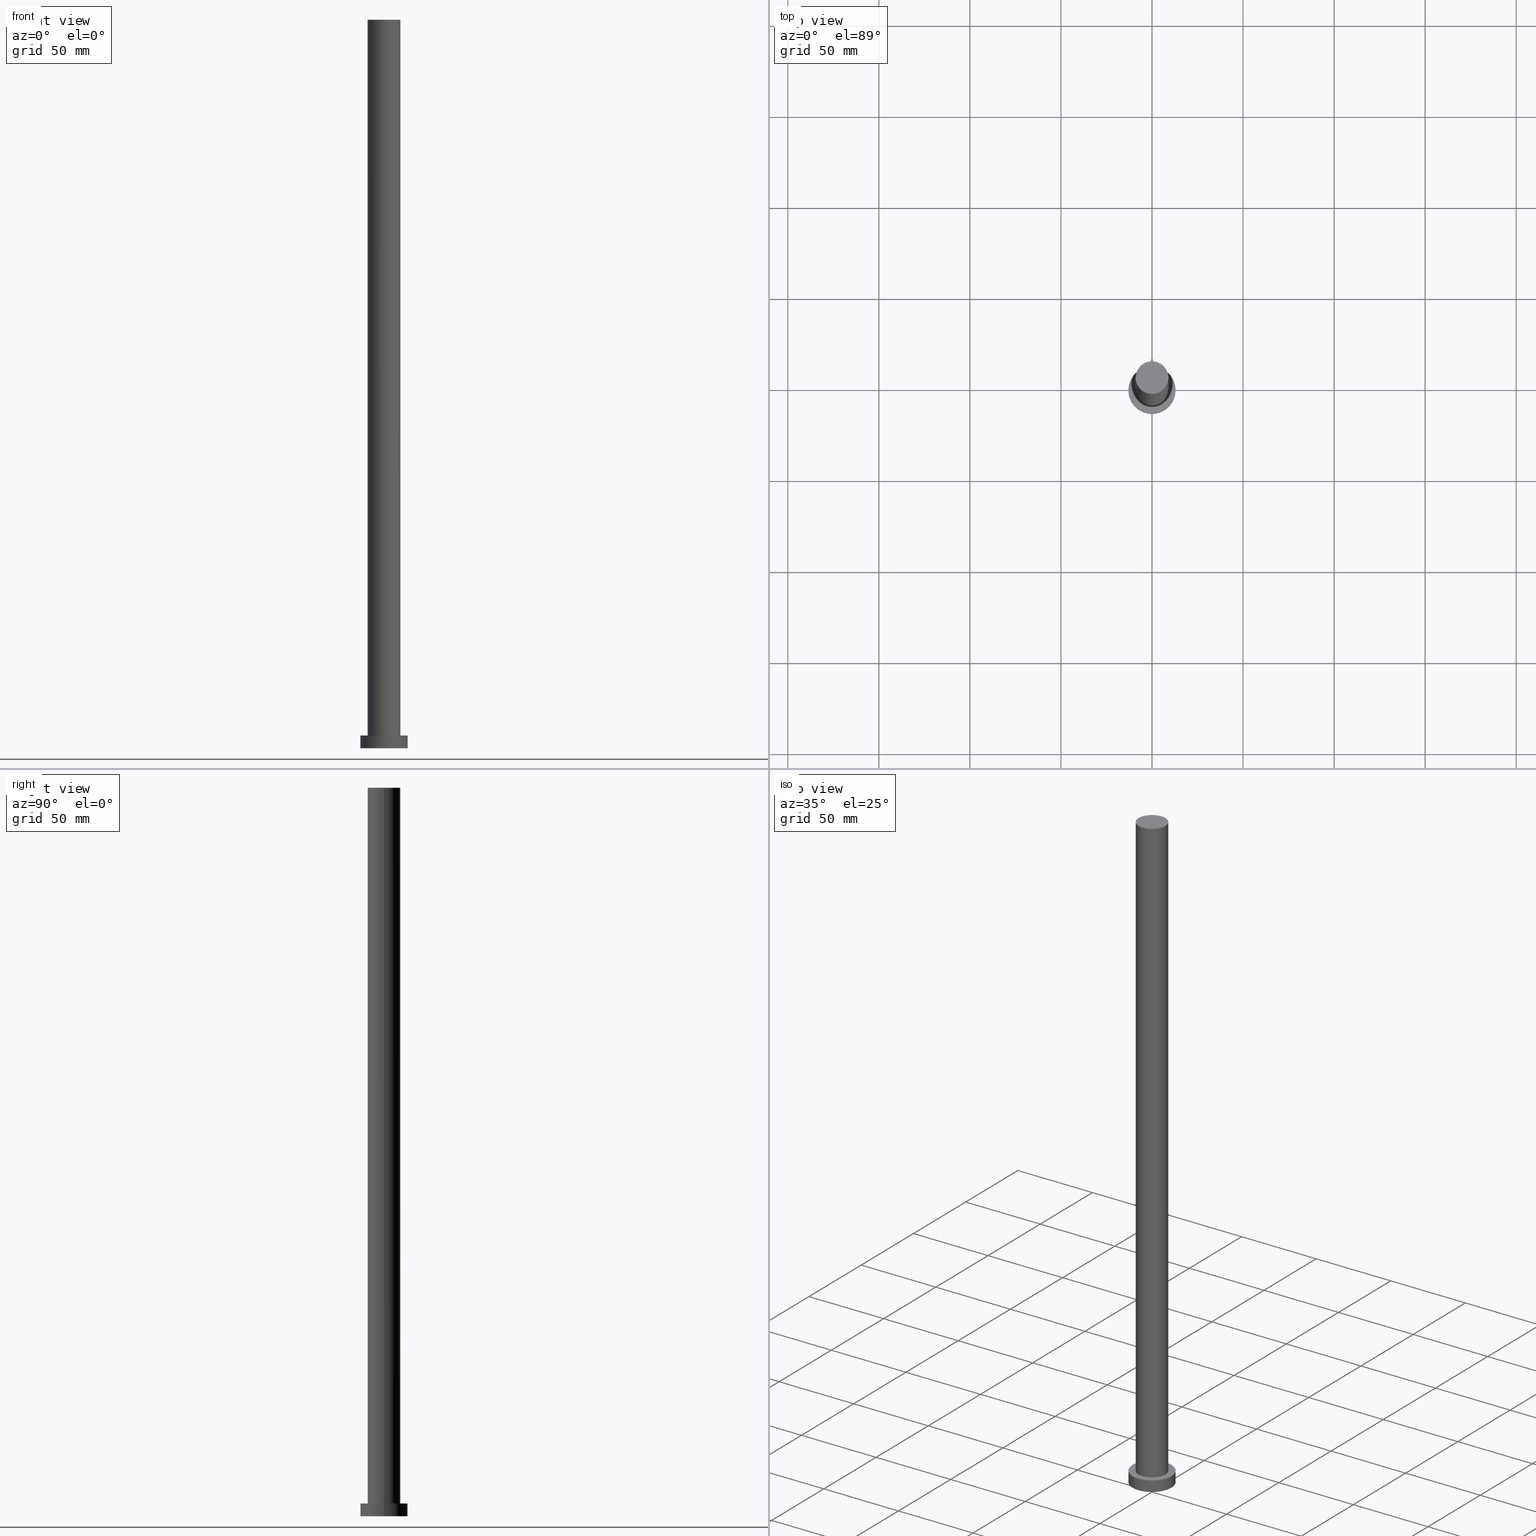
[diagram: canonical four-view strip — front | top / right | iso, engineering-drawing reading convention]
A machine part, canonical four-view strip (front | top / right | iso — engineering-drawing reading convention). The complete STEP part file that produces these views, byte-faithful:
ISO-10303-21;
HEADER;
FILE_DESCRIPTION (( 'STEP AP203' ),
    '1' );
FILE_NAME ('c1e1.STEP',
    '2023-02-13T08:43:02',
    ( '' ),
    ( '' ),
    'SwSTEP 2.0',
    'SolidWorks 2019',
    '' );
FILE_SCHEMA (( 'CONFIG_CONTROL_DESIGN' ));
ENDSEC;

DATA;
#1 = AXIS2_PLACEMENT_3D ( 'NONE', #35, #209, #247 ) ;
#2 = FACE_OUTER_BOUND ( 'NONE', #178, .T. ) ;
#3 = DIRECTION ( 'NONE',  ( 1.000000000000000000, 0.000000000000000000, 0.000000000000000000 ) ) ;
#4 = AXIS2_PLACEMENT_3D ( 'NONE', #131, #208, #135 ) ;
#5 = CARTESIAN_POINT ( 'NONE',  ( 0.000000000000000000, 0.000000000000000000, 0.000000000000000000 ) ) ;
#6 = AXIS2_PLACEMENT_3D ( 'NONE', #89, #144, #91 ) ;
#7 = CARTESIAN_POINT ( 'NONE',  ( 0.000000000000000000, 0.000000000000000000, 400.0000000000000000 ) ) ;
#8 = APPROVAL_ROLE ( '' ) ;
#9 = CYLINDRICAL_SURFACE ( 'NONE', #66, 9.000000000000000000 ) ;
#10 = DIRECTION ( 'NONE',  ( 1.000000000000000000, 0.000000000000000000, 0.000000000000000000 ) ) ;
#11 = VERTEX_POINT ( 'NONE', #80 ) ;
#12 = DATE_AND_TIME ( #51, #242 ) ;
#13 = DIRECTION ( 'NONE',  ( -0.000000000000000000, -0.000000000000000000, -1.000000000000000000 ) ) ;
#14 = CIRCLE ( 'NONE', #159, 9.000000000000000000 ) ;
#15 = APPROVAL_STATUS ( 'not_yet_approved' ) ;
#16 = ADVANCED_FACE ( 'NONE', ( #26, #2 ), #184, .T. ) ;
#17 = DATE_TIME_ROLE ( 'classification_date' ) ;
#18 = ORIENTED_EDGE ( 'NONE', *, *, #204, .F. ) ;
#19 = APPROVAL_PERSON_ORGANIZATION ( #185, #137, #8 ) ;
#20 =( LENGTH_UNIT ( ) NAMED_UNIT ( * ) SI_UNIT ( .MILLI., .METRE. ) );
#21 = LOCAL_TIME ( 9, 43, 2.000000000000000000, #69 ) ;
#22 = VERTEX_POINT ( 'NONE', #122 ) ;
#23 = VECTOR ( 'NONE', #65, 1000.000000000000000 ) ;
#24 = DIRECTION ( 'NONE',  ( -0.000000000000000000, -0.000000000000000000, -1.000000000000000000 ) ) ;
#25 = APPLICATION_CONTEXT ( 'configuration controlled 3d designs of mechanical parts and assemblies' ) ;
#26 = FACE_BOUND ( 'NONE', #53, .T. ) ;
#27 = EDGE_CURVE ( 'NONE', #71, #180, #101, .T. ) ;
#28 = PERSON_AND_ORGANIZATION ( #139, #79 ) ;
#29 = ORIENTED_EDGE ( 'NONE', *, *, #177, .F. ) ;
#30 = VECTOR ( 'NONE', #13, 1000.000000000000000 ) ;
#31 = CARTESIAN_POINT ( 'NONE',  ( 0.000000000000000000, 0.000000000000000000, 400.0000000000000000 ) ) ;
#32 = ADVANCED_FACE ( 'NONE', ( #61 ), #83, .T. ) ;
#33 = APPROVAL_DATE_TIME ( #39, #233 ) ;
#34 = DIRECTION ( 'NONE',  ( 0.000000000000000000, 0.000000000000000000, 1.000000000000000000 ) ) ;
#35 = CARTESIAN_POINT ( 'NONE',  ( 0.000000000000000000, 0.000000000000000000, 7.000000000000000000 ) ) ;
#36 = AXIS2_PLACEMENT_3D ( 'NONE', #211, #34, #38 ) ;
#37 = APPROVAL_ROLE ( '' ) ;
#38 = DIRECTION ( 'NONE',  ( 1.000000000000000000, 0.000000000000000000, 0.000000000000000000 ) ) ;
#39 = DATE_AND_TIME ( #174, #21 ) ;
#40 = ORIENTED_EDGE ( 'NONE', *, *, #60, .T. ) ;
#41 = APPLICATION_CONTEXT ( 'configuration controlled 3d designs of mechanical parts and assemblies' ) ;
#42 = EDGE_CURVE ( 'NONE', #97, #62, #96, .T. ) ;
#43 = DIRECTION ( 'NONE',  ( 1.000000000000000000, 0.000000000000000000, -0.000000000000000000 ) ) ;
#44 = CARTESIAN_POINT ( 'NONE',  ( 0.000000000000000000, 0.000000000000000000, 0.000000000000000000 ) ) ;
#45 = DIRECTION ( 'NONE',  ( -0.000000000000000000, -0.000000000000000000, -1.000000000000000000 ) ) ;
#46 = APPROVAL_ROLE ( '' ) ;
#47 = UNCERTAINTY_MEASURE_WITH_UNIT (LENGTH_MEASURE( 1.000000000000000082E-05 ), #20, 'distance_accuracy_value', 'NONE');
#48 = ORIENTED_EDGE ( 'NONE', *, *, #151, .F. ) ;
#49 = CARTESIAN_POINT ( 'NONE',  ( 9.000000000000000000, 1.102182119232617714E-15, 400.0000000000000000 ) ) ;
#50 = CARTESIAN_POINT ( 'NONE',  ( 0.000000000000000000, 0.000000000000000000, 400.0000000000000000 ) ) ;
#51 = CALENDAR_DATE ( 2023, 13, 2 ) ;
#52 = DIRECTION ( 'NONE',  ( -1.000000000000000000, 0.000000000000000000, 0.000000000000000000 ) ) ;
#53 = EDGE_LOOP ( 'NONE', ( #255, #29 ) ) ;
#54 = CARTESIAN_POINT ( 'NONE',  ( 0.000000000000000000, 0.000000000000000000, 7.000000000000000000 ) ) ;
#55 = DIRECTION ( 'NONE',  ( 0.000000000000000000, 0.000000000000000000, 1.000000000000000000 ) ) ;
#56 = VERTEX_POINT ( 'NONE', #73 ) ;
#57 = AXIS2_PLACEMENT_3D ( 'NONE', #217, #45, #52 ) ;
#58 = CIRCLE ( 'NONE', #232, 13.00000000000000178 ) ;
#59 = ORIENTED_EDGE ( 'NONE', *, *, #204, .T. ) ;
#60 = EDGE_CURVE ( 'NONE', #56, #22, #116, .T. ) ;
#61 = FACE_OUTER_BOUND ( 'NONE', #179, .T. ) ;
#62 = VERTEX_POINT ( 'NONE', #191 ) ;
#63 = DIRECTION ( 'NONE',  ( 1.000000000000000000, 0.000000000000000000, 0.000000000000000000 ) ) ;
#64 = CC_DESIGN_DATE_AND_TIME_ASSIGNMENT ( #130, #17, ( #235 ) ) ;
#65 = DIRECTION ( 'NONE',  ( -0.000000000000000000, -0.000000000000000000, -1.000000000000000000 ) ) ;
#66 = AXIS2_PLACEMENT_3D ( 'NONE', #148, #90, #67 ) ;
#67 = DIRECTION ( 'NONE',  ( -1.000000000000000000, 0.000000000000000000, 0.000000000000000000 ) ) ;
#68 = ORIENTED_EDGE ( 'NONE', *, *, #181, .T. ) ;
#69 = COORDINATED_UNIVERSAL_TIME_OFFSET ( 1, 0, .AHEAD. ) ;
#70 = DIRECTION ( 'NONE',  ( 1.000000000000000000, 0.000000000000000000, 0.000000000000000000 ) ) ;
#71 = VERTEX_POINT ( 'NONE', #145 ) ;
#72 = PERSON_AND_ORGANIZATION ( #139, #79 ) ;
#73 = CARTESIAN_POINT ( 'NONE',  ( 9.000000000000000000, 1.102182119232617714E-15, 400.0000000000000000 ) ) ;
#74 = CIRCLE ( 'NONE', #146, 9.000000000000000000 ) ;
#75 = EDGE_CURVE ( 'NONE', #215, #11, #213, .T. ) ;
#76 = ORIENTED_EDGE ( 'NONE', *, *, #244, .T. ) ;
#77 = ORIENTED_EDGE ( 'NONE', *, *, #244, .F. ) ;
#78 = DIRECTION ( 'NONE',  ( -0.000000000000000000, -0.000000000000000000, -1.000000000000000000 ) ) ;
#79 = ORGANIZATION ( 'NEUR�EN�', 'NEUR�EN�', '' ) ;
#80 = CARTESIAN_POINT ( 'NONE',  ( -13.00000000000000178, 0.000000000000000000, 0.000000000000000000 ) ) ;
#81 = APPLICATION_PROTOCOL_DEFINITION ( 'international standard', 'config_control_design', 1994, #25 ) ;
#82 = PRODUCT_DEFINITION_SHAPE ( 'NONE', 'NONE',  #124 ) ;
#83 = CYLINDRICAL_SURFACE ( 'NONE', #57, 13.00000000000000178 ) ;
#84 = APPROVAL_STATUS ( 'not_yet_approved' ) ;
#85 = FACE_OUTER_BOUND ( 'NONE', #210, .T. ) ;
#86 = PRODUCT_RELATED_PRODUCT_CATEGORY ( 'detail', '', ( #253 ) ) ;
#87 = CLOSED_SHELL ( 'NONE', ( #103, #200, #32, #16, #118, #167, #156 ) ) ;
#88 = CALENDAR_DATE ( 2023, 13, 2 ) ;
#89 = CARTESIAN_POINT ( 'NONE',  ( 0.000000000000000000, 0.000000000000000000, 400.0000000000000000 ) ) ;
#90 = DIRECTION ( 'NONE',  ( -0.000000000000000000, -0.000000000000000000, -1.000000000000000000 ) ) ;
#91 = DIRECTION ( 'NONE',  ( 1.000000000000000000, 0.000000000000000000, 0.000000000000000000 ) ) ;
#92 = ORIENTED_EDGE ( 'NONE', *, *, #181, .F. ) ;
#93 = DIRECTION ( 'NONE',  ( 1.000000000000000000, 0.000000000000000000, -0.000000000000000000 ) ) ;
#94 = SHAPE_DEFINITION_REPRESENTATION ( #82, #160 ) ;
#95 = PERSON_AND_ORGANIZATION_ROLE ( 'classification_officer' ) ;
#96 = CIRCLE ( 'NONE', #1, 13.00000000000000178 ) ;
#97 = VERTEX_POINT ( 'NONE', #190 ) ;
#98 = ORIENTED_EDGE ( 'NONE', *, *, #60, .F. ) ;
#99 = LOCAL_TIME ( 9, 43, 2.000000000000000000, #125 ) ;
#100 = ORIENTED_EDGE ( 'NONE', *, *, #27, .F. ) ;
#101 = LINE ( 'NONE', #182, #188 ) ;
#102 =( NAMED_UNIT ( * ) PLANE_ANGLE_UNIT ( ) SI_UNIT ( $, .RADIAN. ) );
#103 = ADVANCED_FACE ( 'NONE', ( #85 ), #223, .T. ) ;
#104 = PERSON_AND_ORGANIZATION_ROLE ( 'design_owner' ) ;
#105 = CALENDAR_DATE ( 2023, 13, 2 ) ;
#106 = PERSON_AND_ORGANIZATION_ROLE ( 'creator' ) ;
#107 = CC_DESIGN_PERSON_AND_ORGANIZATION_ASSIGNMENT ( #127, #104, ( #253 ) ) ;
#108 = LOCAL_TIME ( 9, 43, 2.000000000000000000, #123 ) ;
#109 = DIRECTION ( 'NONE',  ( 0.000000000000000000, 0.000000000000000000, 1.000000000000000000 ) ) ;
#110 = DATE_AND_TIME ( #88, #99 ) ;
#111 = CARTESIAN_POINT ( 'NONE',  ( 0.000000000000000000, 0.000000000000000000, 0.000000000000000000 ) ) ;
#112 = PLANE ( 'NONE',  #166 ) ;
#113 = PERSON_AND_ORGANIZATION ( #139, #79 ) ;
#114 = CC_DESIGN_PERSON_AND_ORGANIZATION_ASSIGNMENT ( #113, #154, ( #152 ) ) ;
#115 = APPROVAL_PERSON_ORGANIZATION ( #218, #221, #46 ) ;
#116 = LINE ( 'NONE', #49, #23 ) ;
#117 = CC_DESIGN_PERSON_AND_ORGANIZATION_ASSIGNMENT ( #28, #106, ( #124 ) ) ;
#118 = ADVANCED_FACE ( 'NONE', ( #229 ), #112, .F. ) ;
#119 = ORIENTED_EDGE ( 'NONE', *, *, #42, .T. ) ;
#120 = CC_DESIGN_SECURITY_CLASSIFICATION ( #235, ( #152 ) ) ;
#121 = AXIS2_PLACEMENT_3D ( 'NONE', #111, #168, #10 ) ;
#122 = CARTESIAN_POINT ( 'NONE',  ( 9.000000000000000000, 1.102182119232617714E-15, 7.000000000000000000 ) ) ;
#123 = COORDINATED_UNIVERSAL_TIME_OFFSET ( 1, 0, .AHEAD. ) ;
#124 = PRODUCT_DEFINITION ( 'NEZN�M�', '', #152, #237 ) ;
#125 = COORDINATED_UNIVERSAL_TIME_OFFSET ( 1, 0, .AHEAD. ) ;
#126 = CARTESIAN_POINT ( 'NONE',  ( 0.000000000000000000, 0.000000000000000000, 7.000000000000000000 ) ) ;
#127 = PERSON_AND_ORGANIZATION ( #139, #79 ) ;
#128 =( GEOMETRIC_REPRESENTATION_CONTEXT ( 3 ) GLOBAL_UNCERTAINTY_ASSIGNED_CONTEXT ( ( #47 ) ) GLOBAL_UNIT_ASSIGNED_CONTEXT ( ( #20, #102, #141 ) ) REPRESENTATION_CONTEXT ( 'NONE', 'WORKASPACE' ) );
#129 = DIRECTION ( 'NONE',  ( -0.000000000000000000, -0.000000000000000000, -1.000000000000000000 ) ) ;
#130 = DATE_AND_TIME ( #224, #134 ) ;
#131 = CARTESIAN_POINT ( 'NONE',  ( 0.000000000000000000, 0.000000000000000000, 7.000000000000000000 ) ) ;
#132 = ORIENTED_EDGE ( 'NONE', *, *, #248, .T. ) ;
#133 = DIRECTION ( 'NONE',  ( 1.000000000000000000, 0.000000000000000000, -0.000000000000000000 ) ) ;
#134 = LOCAL_TIME ( 9, 43, 2.000000000000000000, #250 ) ;
#135 = DIRECTION ( 'NONE',  ( -1.000000000000000000, 0.000000000000000000, 0.000000000000000000 ) ) ;
#136 = AXIS2_PLACEMENT_3D ( 'NONE', #234, #198, #43 ) ;
#137 = APPROVAL ( #239, 'NEUR�EN�' ) ;
#138 = ORIENTED_EDGE ( 'NONE', *, *, #161, .T. ) ;
#139 = PERSON ( 'NEUR�EN�', 'NEUR�EN�', 'NEUR�EN�', ('NEUR�EN�'), ('NEUR�EN�'), ('NEUR�EN�') ) ;
#140 = ORIENTED_EDGE ( 'NONE', *, *, #151, .T. ) ;
#141 =( NAMED_UNIT ( * ) SI_UNIT ( $, .STERADIAN. ) SOLID_ANGLE_UNIT ( ) );
#142 = APPROVAL_PERSON_ORGANIZATION ( #72, #233, #37 ) ;
#143 = CC_DESIGN_PERSON_AND_ORGANIZATION_ASSIGNMENT ( #246, #95, ( #235 ) ) ;
#144 = DIRECTION ( 'NONE',  ( 0.000000000000000000, 0.000000000000000000, 1.000000000000000000 ) ) ;
#145 = CARTESIAN_POINT ( 'NONE',  ( -9.000000000000000000, 0.000000000000000000, 400.0000000000000000 ) ) ;
#146 = AXIS2_PLACEMENT_3D ( 'NONE', #7, #222, #63 ) ;
#147 = PLANE ( 'NONE',  #155 ) ;
#148 = CARTESIAN_POINT ( 'NONE',  ( 0.000000000000000000, 0.000000000000000000, 400.0000000000000000 ) ) ;
#149 = ORIENTED_EDGE ( 'NONE', *, *, #75, .F. ) ;
#150 = DIRECTION ( 'NONE',  ( -1.000000000000000000, 0.000000000000000000, 0.000000000000000000 ) ) ;
#151 = EDGE_CURVE ( 'NONE', #56, #71, #231, .T. ) ;
#152 = PRODUCT_DEFINITION_FORMATION_WITH_SPECIFIED_SOURCE ( 'LIBOVOLN�', '', #253, .NOT_KNOWN. ) ;
#153 = DIRECTION ( 'NONE',  ( 0.000000000000000000, 0.000000000000000000, 1.000000000000000000 ) ) ;
#154 = PERSON_AND_ORGANIZATION_ROLE ( 'creator' ) ;
#155 = AXIS2_PLACEMENT_3D ( 'NONE', #31, #55, #93 ) ;
#156 = ADVANCED_FACE ( 'NONE', ( #207 ), #147, .T. ) ;
#157 = EDGE_LOOP ( 'NONE', ( #203, #140 ) ) ;
#158 = ORIENTED_EDGE ( 'NONE', *, *, #42, .F. ) ;
#159 = AXIS2_PLACEMENT_3D ( 'NONE', #169, #172, #165 ) ;
#160 = ADVANCED_BREP_SHAPE_REPRESENTATION ( 'c1e1', ( #238, #254 ), #128 ) ;
#161 = EDGE_CURVE ( 'NONE', #180, #22, #14, .T. ) ;
#162 = CARTESIAN_POINT ( 'NONE',  ( -13.00000000000000178, 0.000000000000000000, 7.000000000000000000 ) ) ;
#163 = MECHANICAL_CONTEXT ( 'NONE', #41, 'mechanical' ) ;
#164 = VECTOR ( 'NONE', #24, 1000.000000000000000 ) ;
#165 = DIRECTION ( 'NONE',  ( 1.000000000000000000, 0.000000000000000000, 0.000000000000000000 ) ) ;
#166 = AXIS2_PLACEMENT_3D ( 'NONE', #5, #241, #133 ) ;
#167 = ADVANCED_FACE ( 'NONE', ( #194 ), #9, .T. ) ;
#168 = DIRECTION ( 'NONE',  ( 0.000000000000000000, 0.000000000000000000, 1.000000000000000000 ) ) ;
#169 = CARTESIAN_POINT ( 'NONE',  ( 0.000000000000000000, 0.000000000000000000, 7.000000000000000000 ) ) ;
#170 = ORIENTED_EDGE ( 'NONE', *, *, #75, .T. ) ;
#171 = APPROVAL_DATE_TIME ( #12, #137 ) ;
#172 = DIRECTION ( 'NONE',  ( 0.000000000000000000, 0.000000000000000000, 1.000000000000000000 ) ) ;
#173 = CC_DESIGN_DATE_AND_TIME_ASSIGNMENT ( #110, #189, ( #124 ) ) ;
#174 = CALENDAR_DATE ( 2023, 13, 2 ) ;
#175 = CC_DESIGN_APPROVAL ( #233, ( #235 ) ) ;
#176 = ORIENTED_EDGE ( 'NONE', *, *, #27, .T. ) ;
#177 = EDGE_CURVE ( 'NONE', #22, #180, #220, .T. ) ;
#178 = EDGE_LOOP ( 'NONE', ( #76, #119 ) ) ;
#179 = EDGE_LOOP ( 'NONE', ( #92, #77, #132, #59 ) ) ;
#180 = VERTEX_POINT ( 'NONE', #225 ) ;
#181 = EDGE_CURVE ( 'NONE', #97, #215, #245, .T. ) ;
#182 = CARTESIAN_POINT ( 'NONE',  ( -9.000000000000000000, 0.000000000000000000, 400.0000000000000000 ) ) ;
#183 = APPLICATION_PROTOCOL_DEFINITION ( 'international standard', 'config_control_design', 1994, #41 ) ;
#184 = PLANE ( 'NONE',  #136 ) ;
#185 = PERSON_AND_ORGANIZATION ( #139, #79 ) ;
#186 = DIRECTION ( 'NONE',  ( 0.000000000000000000, 0.000000000000000000, 1.000000000000000000 ) ) ;
#187 = DIRECTION ( 'NONE',  ( 1.000000000000000000, 0.000000000000000000, 0.000000000000000000 ) ) ;
#188 = VECTOR ( 'NONE', #78, 1000.000000000000000 ) ;
#189 = DATE_TIME_ROLE ( 'creation_date' ) ;
#190 = CARTESIAN_POINT ( 'NONE',  ( 13.00000000000000178, 1.592040838891559293E-15, 7.000000000000000000 ) ) ;
#191 = CARTESIAN_POINT ( 'NONE',  ( -13.00000000000000178, 0.000000000000000000, 7.000000000000000000 ) ) ;
#192 = ORIENTED_EDGE ( 'NONE', *, *, #177, .T. ) ;
#193 = CIRCLE ( 'NONE', #36, 13.00000000000000178 ) ;
#194 = FACE_OUTER_BOUND ( 'NONE', #206, .T. ) ;
#195 = PERSON_AND_ORGANIZATION ( #139, #79 ) ;
#196 = CC_DESIGN_APPROVAL ( #221, ( #124 ) ) ;
#197 = ORIENTED_EDGE ( 'NONE', *, *, #248, .F. ) ;
#198 = DIRECTION ( 'NONE',  ( 0.000000000000000000, 0.000000000000000000, 1.000000000000000000 ) ) ;
#199 = CC_DESIGN_APPROVAL ( #137, ( #152 ) ) ;
#200 = ADVANCED_FACE ( 'NONE', ( #240 ), #205, .T. ) ;
#201 = DATE_AND_TIME ( #105, #108 ) ;
#202 = AXIS2_PLACEMENT_3D ( 'NONE', #50, #129, #150 ) ;
#203 = ORIENTED_EDGE ( 'NONE', *, *, #228, .T. ) ;
#204 = EDGE_CURVE ( 'NONE', #11, #215, #193, .T. ) ;
#205 = CYLINDRICAL_SURFACE ( 'NONE', #4, 13.00000000000000178 ) ;
#206 = EDGE_LOOP ( 'NONE', ( #98, #226, #176, #138 ) ) ;
#207 = FACE_OUTER_BOUND ( 'NONE', #157, .T. ) ;
#208 = DIRECTION ( 'NONE',  ( -0.000000000000000000, -0.000000000000000000, -1.000000000000000000 ) ) ;
#209 = DIRECTION ( 'NONE',  ( 0.000000000000000000, 0.000000000000000000, 1.000000000000000000 ) ) ;
#210 = EDGE_LOOP ( 'NONE', ( #48, #40, #192, #100 ) ) ;
#211 = CARTESIAN_POINT ( 'NONE',  ( 0.000000000000000000, 0.000000000000000000, 0.000000000000000000 ) ) ;
#212 = PERSON_AND_ORGANIZATION_ROLE ( 'design_supplier' ) ;
#213 = CIRCLE ( 'NONE', #121, 13.00000000000000178 ) ;
#214 = CC_DESIGN_PERSON_AND_ORGANIZATION_ASSIGNMENT ( #195, #212, ( #152 ) ) ;
#215 = VERTEX_POINT ( 'NONE', #236 ) ;
#216 = EDGE_LOOP ( 'NONE', ( #158, #68, #170, #197 ) ) ;
#217 = CARTESIAN_POINT ( 'NONE',  ( 0.000000000000000000, 0.000000000000000000, 7.000000000000000000 ) ) ;
#218 = PERSON_AND_ORGANIZATION ( #139, #79 ) ;
#219 = APPROVAL_DATE_TIME ( #201, #221 ) ;
#220 = CIRCLE ( 'NONE', #249, 9.000000000000000000 ) ;
#221 = APPROVAL ( #84, 'NEUR�EN�' ) ;
#222 = DIRECTION ( 'NONE',  ( 0.000000000000000000, 0.000000000000000000, 1.000000000000000000 ) ) ;
#223 = CYLINDRICAL_SURFACE ( 'NONE', #202, 9.000000000000000000 ) ;
#224 = CALENDAR_DATE ( 2023, 13, 2 ) ;
#225 = CARTESIAN_POINT ( 'NONE',  ( -9.000000000000000000, 0.000000000000000000, 7.000000000000000000 ) ) ;
#226 = ORIENTED_EDGE ( 'NONE', *, *, #228, .F. ) ;
#227 = CARTESIAN_POINT ( 'NONE',  ( 13.00000000000000178, 1.592040838891559293E-15, 7.000000000000000000 ) ) ;
#228 = EDGE_CURVE ( 'NONE', #71, #56, #74, .T. ) ;
#229 = FACE_OUTER_BOUND ( 'NONE', #252, .T. ) ;
#230 = LINE ( 'NONE', #162, #164 ) ;
#231 = CIRCLE ( 'NONE', #6, 9.000000000000000000 ) ;
#232 = AXIS2_PLACEMENT_3D ( 'NONE', #126, #109, #187 ) ;
#233 = APPROVAL ( #15, 'NEUR�EN�' ) ;
#234 = CARTESIAN_POINT ( 'NONE',  ( 0.000000000000000000, 0.000000000000000000, 7.000000000000000000 ) ) ;
#235 = SECURITY_CLASSIFICATION ( '', '', #243 ) ;
#236 = CARTESIAN_POINT ( 'NONE',  ( 13.00000000000000178, 1.592040838891559293E-15, 0.000000000000000000 ) ) ;
#237 = DESIGN_CONTEXT ( 'detailed design', #25, 'design' ) ;
#238 = MANIFOLD_SOLID_BREP ( 'P�idat vysunut�m3', #87 ) ;
#239 = APPROVAL_STATUS ( 'not_yet_approved' ) ;
#240 = FACE_OUTER_BOUND ( 'NONE', #216, .T. ) ;
#241 = DIRECTION ( 'NONE',  ( 0.000000000000000000, 0.000000000000000000, 1.000000000000000000 ) ) ;
#242 = LOCAL_TIME ( 9, 43, 2.000000000000000000, #251 ) ;
#243 = SECURITY_CLASSIFICATION_LEVEL ( 'unclassified' ) ;
#244 = EDGE_CURVE ( 'NONE', #62, #97, #58, .T. ) ;
#245 = LINE ( 'NONE', #227, #30 ) ;
#246 = PERSON_AND_ORGANIZATION ( #139, #79 ) ;
#247 = DIRECTION ( 'NONE',  ( 1.000000000000000000, 0.000000000000000000, 0.000000000000000000 ) ) ;
#248 = EDGE_CURVE ( 'NONE', #62, #11, #230, .T. ) ;
#249 = AXIS2_PLACEMENT_3D ( 'NONE', #54, #186, #70 ) ;
#250 = COORDINATED_UNIVERSAL_TIME_OFFSET ( 1, 0, .AHEAD. ) ;
#251 = COORDINATED_UNIVERSAL_TIME_OFFSET ( 1, 0, .AHEAD. ) ;
#252 = EDGE_LOOP ( 'NONE', ( #18, #149 ) ) ;
#253 = PRODUCT ( 'c1e1', 'c1e1', '', ( #163 ) ) ;
#254 = AXIS2_PLACEMENT_3D ( 'NONE', #44, #153, #3 ) ;
#255 = ORIENTED_EDGE ( 'NONE', *, *, #161, .F. ) ;
ENDSEC;
END-ISO-10303-21;
